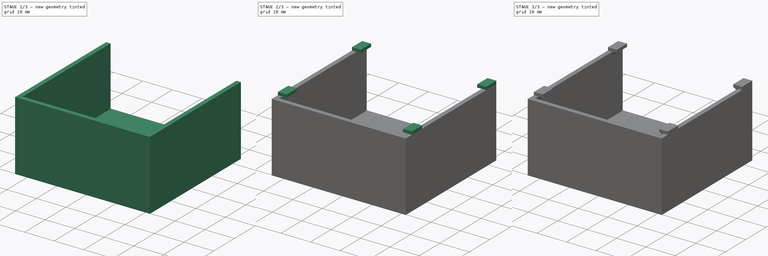
[diagram: build sequence overview — one tinted view per stage of 3, left to right]
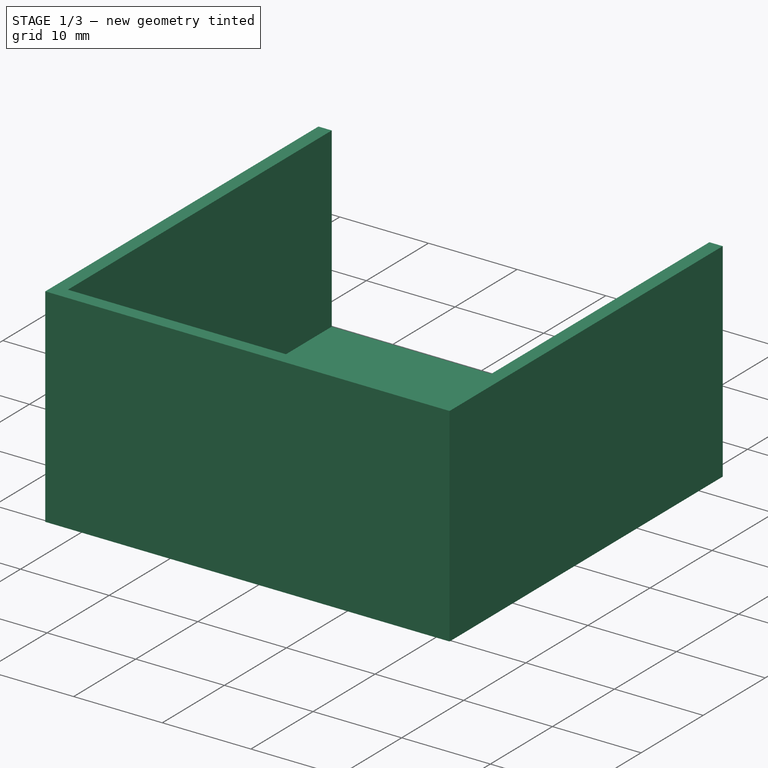
[diagram: stage 1 of 3 — iso view after this stage's code; geometry added in this stage tinted green]
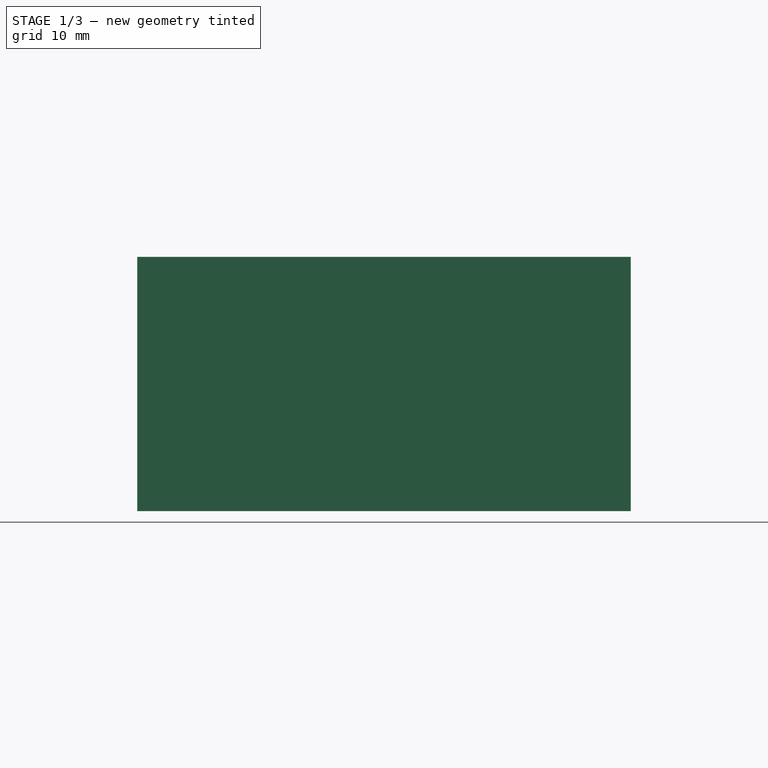
[diagram: stage 1 of 3 — front view after this stage's code; geometry added in this stage tinted green]
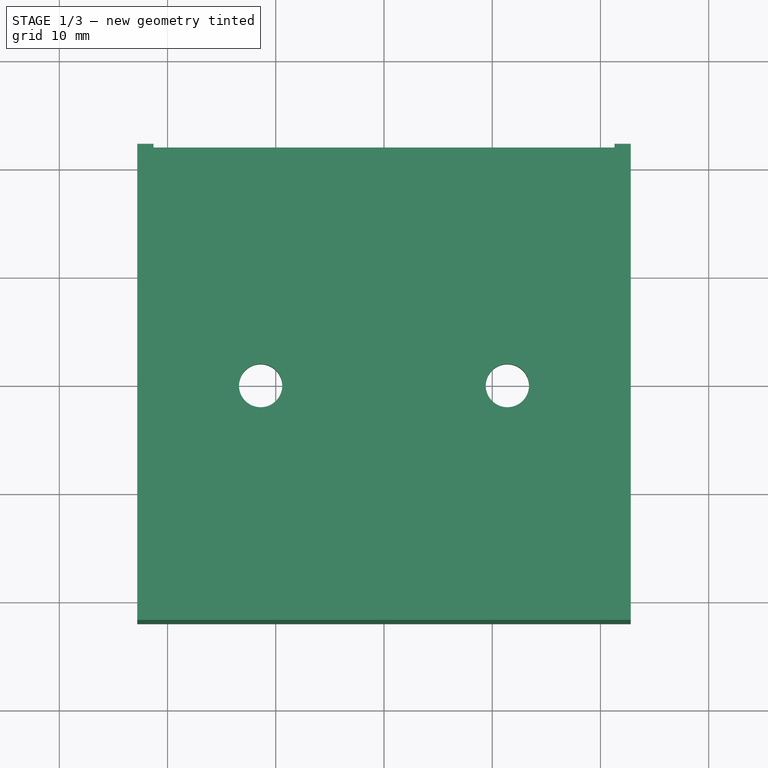
[diagram: stage 1 of 3 — top view after this stage's code; geometry added in this stage tinted green]
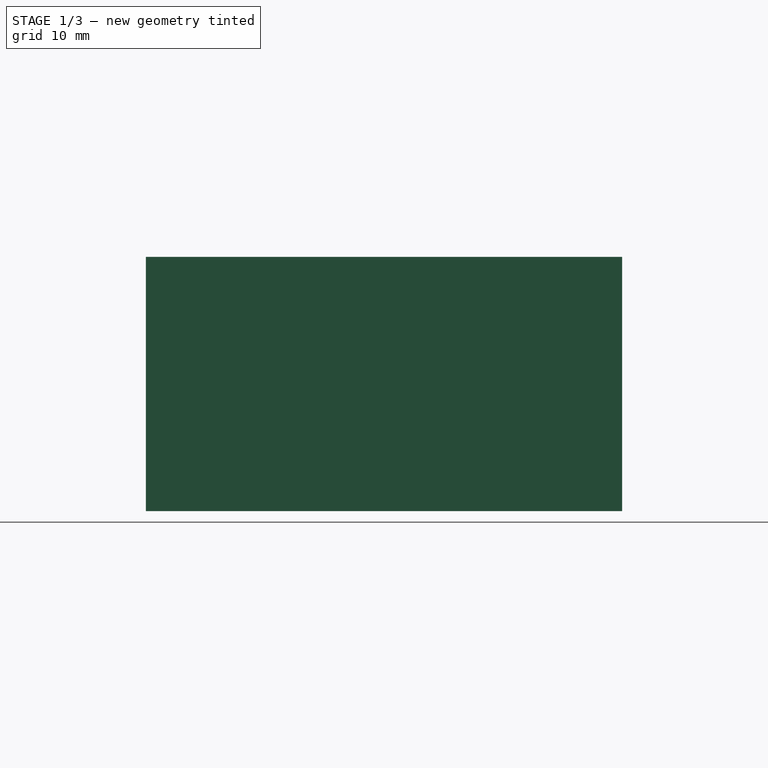
[diagram: stage 1 of 3 — right view after this stage's code; geometry added in this stage tinted green]
FCSTD DOCUMENT  (FreeCAD 0.20R29603 (Git))
Label: sonoff_zbmini_mount_v1
License: All rights reserved
LicenseURL: http://en.wikipedia.org/wiki/All_rights_reserved
objects: Sketcher::SketchObject×3, PartDesign::Pad×3, PartDesign::Chamfer×2, PartDesign::Body×1
note: 14 computed .brp shape members not serialized (recipe doc carries the construction recipe); baked Part::Feature solids carry a one-line shape summary decoded from their .brp

FEATURE [Sketcher::SketchObject] Sketch  label="baseplate"
  FullyConstrained = true
  sketch-geometry (6):
    g0: LineSegment StartX=-22.8 StartY=22 StartZ=0 EndX=22.8 EndY=22 EndZ=0
    g1: LineSegment StartX=22.8 StartY=22 StartZ=0 EndX=22.8 EndY=-22 EndZ=0
    g2: LineSegment StartX=22.8 StartY=-22 StartZ=0 EndX=-22.8 EndY=-22 EndZ=0
    g3: LineSegment StartX=-22.8 StartY=-22 StartZ=0 EndX=-22.8 EndY=22 EndZ=0
    g4: Circle CenterX=-11.4 CenterY=0 CenterZ=0 NormalX=0 NormalY=0 NormalZ=1 AngleXU=0 Radius=2
    g5: Circle CenterX=11.4 CenterY=0 CenterZ=0 NormalX=0 NormalY=0 NormalZ=1 AngleXU=0 Radius=2
  constraints (15):
    c: Coincident(g0,g1)
    c: Coincident(g1,g2)
    c: Coincident(g2,g3)
    c: Coincident(g3,g0)
    c: Horizontal(g2)
    c: Vertical(g3)
    c: DistanceX(g0,g0) = 45.6
    c: DistanceY(g1,g1) = 44
    c: Symmetric(g0,g0,g-2)
    c: Symmetric(g1,g0,g-1)
    c: PointOnObject(g4,g-1)
    c: Diameter(g4) = 4
    c: Equal(g4,g5)
    c: Symmetric(g4,g5,g-2)
    c: DistanceX(g4,g-1) = 11.4
FEATURE [PartDesign::Pad] Pad  label="baseplate001"
  Direction = (0,0,1)
  Length = 3.5
  Length2 = 10
  Profile = -> Sketch
  ReferenceAxis = -> Sketch [N_Axis]
  Type = 0
FEATURE [Sketcher::SketchObject] Sketch001  label="walls_sketch"
  ExternalGeometry = -> [Pad]
  FullyConstrained = true
  MapMode = 5
  Placement = pos=(0,0,3.5) rot=(0,0,1;0rad)
  Support = -> [Pad]
  sketch-geometry (8):
    g0: LineSegment StartX=-22.8 StartY=22 StartZ=0 EndX=-22.8 EndY=-22 EndZ=0
    g1: LineSegment StartX=-22.8 StartY=-22 StartZ=0 EndX=22.8 EndY=-22 EndZ=0
    g2: LineSegment StartX=22.8 StartY=22 StartZ=0 EndX=22.8 EndY=-22 EndZ=0
    g3: LineSegment StartX=-22.8 StartY=22 StartZ=0 EndX=-21.3 EndY=22 EndZ=0
    g4: LineSegment StartX=22.8 StartY=22 StartZ=0 EndX=21.3 EndY=22 EndZ=0
    g5: LineSegment StartX=-21.3 StartY=22 StartZ=0 EndX=-21.3 EndY=-20.5 EndZ=0
    g6: LineSegment StartX=21.3 StartY=22 StartZ=0 EndX=21.3 EndY=-20.5 EndZ=0
    g7: LineSegment StartX=-21.3 StartY=-20.5 StartZ=0 EndX=21.3 EndY=-20.5 EndZ=0
  constraints (18):
    c: Coincident(g0,g-3)
    c: Coincident(g0,g-4)
    c: Coincident(g1,g0)
    c: Coincident(g1,g-5)
    c: Coincident(g2,g-5)
    c: Coincident(g2,g1)
    c: Coincident(g3,g0)
    c: Horizontal(g3)
    c: Coincident(g4,g2)
    c: Symmetric(g3,g4,g-2)
    c: DistanceX(g3,g3) = 1.5
    c: Coincident(g5,g3)
    c: Vertical(g5)
    c: Coincident(g6,g4)
    c: Symmetric(g5,g6,g-2)
    c: Coincident(g7,g5)
    c: Coincident(g7,g6)
    c: DistanceY(g0,g5) = 1.5
FEATURE [PartDesign::Pad] Pad001  label="walls"
  BaseFeature = -> Pad
  Direction = (0,0,1)
  Length = 20
  Length2 = 10
  Profile = -> Sketch001
  ReferenceAxis = -> Sketch001 [N_Axis]
  Type = 0
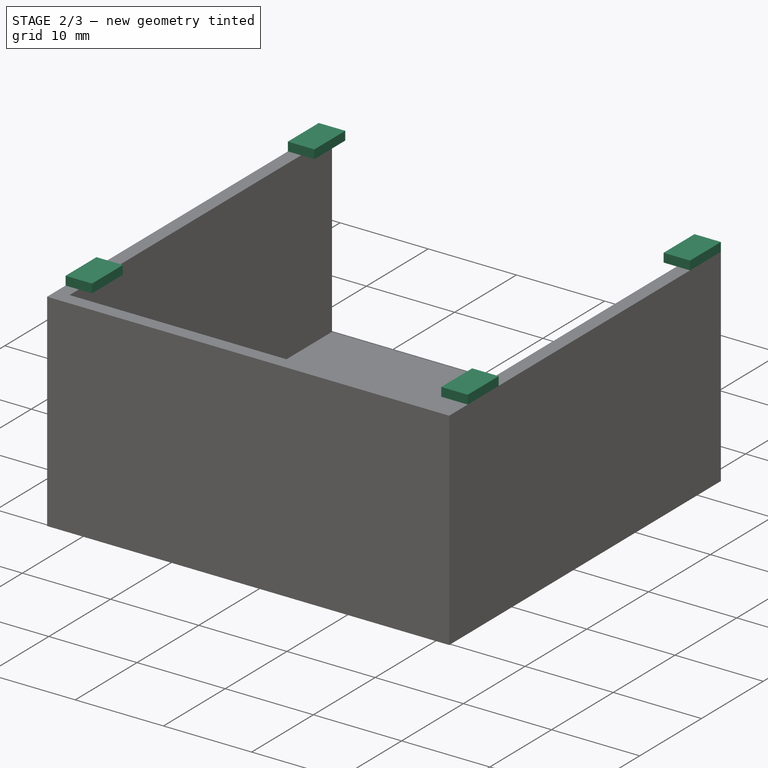
[diagram: stage 2 of 3 — iso view after this stage's code; geometry added in this stage tinted green]
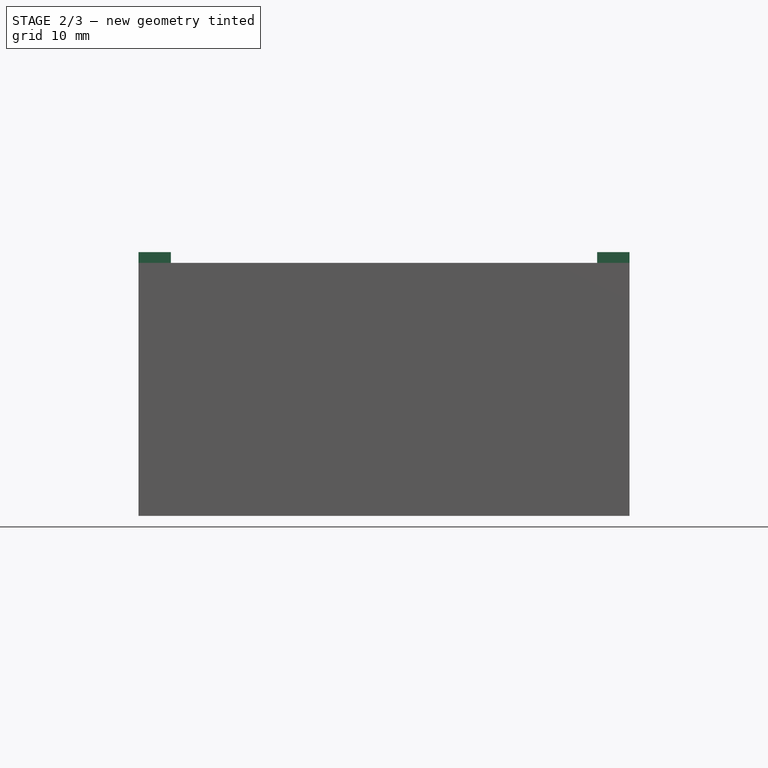
[diagram: stage 2 of 3 — front view after this stage's code; geometry added in this stage tinted green]
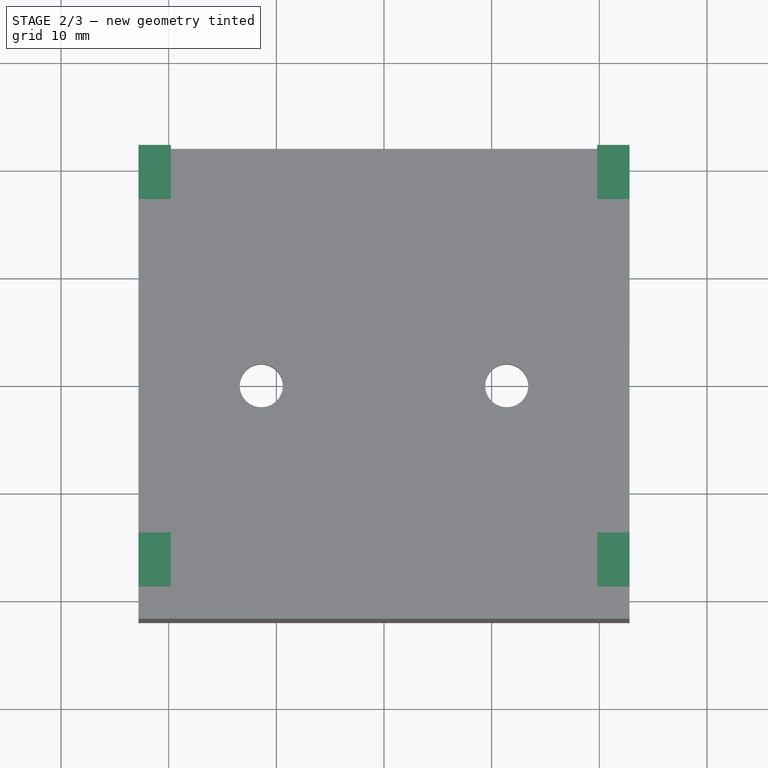
[diagram: stage 2 of 3 — top view after this stage's code; geometry added in this stage tinted green]
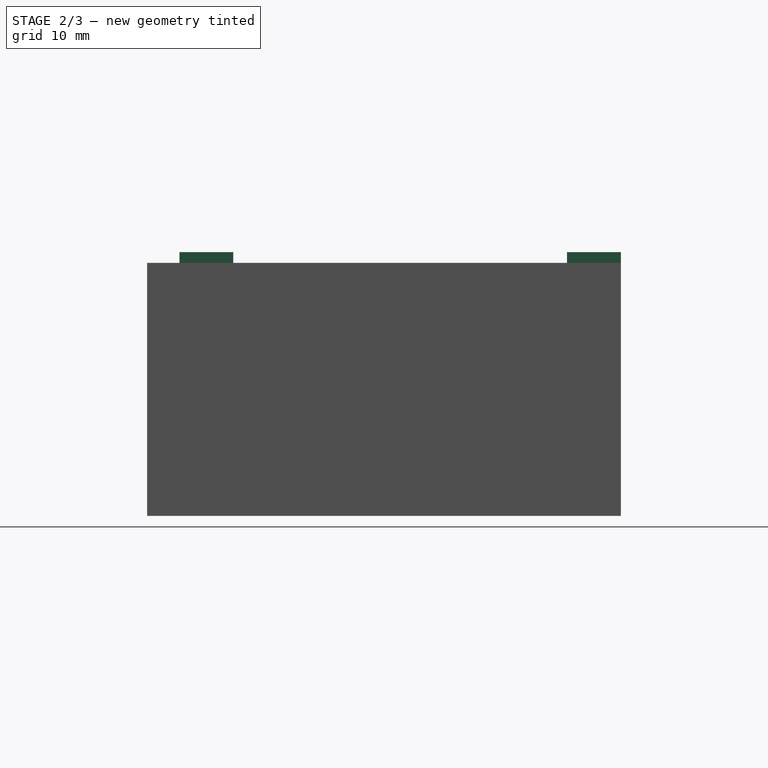
[diagram: stage 2 of 3 — right view after this stage's code; geometry added in this stage tinted green]
FEATURE [Sketcher::SketchObject] Sketch002  label="retainer"
  ExternalGeometry = -> [Pad001]
  FullyConstrained = true
  MapMode = 5
  Placement = pos=(0,0,23.5) rot=(0,0,1;0rad)
  Support = -> [Pad001]
  sketch-geometry (16):
    g0: LineSegment StartX=-22.8 StartY=22 StartZ=0 EndX=-19.8 EndY=22 EndZ=0
    g1: LineSegment StartX=-19.8 StartY=22 StartZ=0 EndX=-19.8 EndY=17 EndZ=0
    g2: LineSegment StartX=-19.8 StartY=17 StartZ=0 EndX=-22.8 EndY=17 EndZ=0
    g3: LineSegment StartX=-22.8 StartY=17 StartZ=0 EndX=-22.8 EndY=22 EndZ=0
    g4: LineSegment StartX=22.8 StartY=22 StartZ=0 EndX=19.8 EndY=22 EndZ=0
    g5: LineSegment StartX=19.8 StartY=22 StartZ=0 EndX=19.8 EndY=17 EndZ=0
    g6: LineSegment StartX=19.8 StartY=17 StartZ=0 EndX=22.8 EndY=17 EndZ=0
    g7: LineSegment StartX=22.8 StartY=17 StartZ=0 EndX=22.8 EndY=22 EndZ=0
    g8: LineSegment StartX=-22.8 StartY=-19 StartZ=0 EndX=-19.8 EndY=-19 EndZ=0
    g9: LineSegment StartX=-19.8 StartY=-19 StartZ=0 EndX=-19.8 EndY=-14 EndZ=0
    g10: LineSegment StartX=-19.8 StartY=-14 StartZ=0 EndX=-22.8 EndY=-14 EndZ=0
    g11: LineSegment StartX=-22.8 StartY=-14 StartZ=0 EndX=-22.8 EndY=-19 EndZ=0
    g12: LineSegment StartX=22.8 StartY=-19 StartZ=0 EndX=19.8 EndY=-19 EndZ=0
    g13: LineSegment StartX=19.8 StartY=-19 StartZ=0 EndX=19.8 EndY=-14 EndZ=0
    g14: LineSegment StartX=19.8 StartY=-14 StartZ=0 EndX=22.8 EndY=-14 EndZ=0
    g15: LineSegment StartX=22.8 StartY=-14 StartZ=0 EndX=22.8 EndY=-19 EndZ=0
  constraints (43):
    c: Coincident(g0,g1)
    c: Coincident(g1,g2)
    c: Coincident(g2,g3)
    c: Coincident(g3,g0)
    c: Horizontal(g0)
    c: Horizontal(g2)
    c: Vertical(g1)
    c: Vertical(g3)
    c: Coincident(g0,g-3)
    c: Coincident(g4,g5)
    c: Coincident(g5,g6)
    c: Coincident(g6,g7)
    c: Coincident(g7,g4)
    c: Horizontal(g4)
    c: Horizontal(g6)
    c: Vertical(g5)
    c: Vertical(g7)
    c: Coincident(g4,g-4)
    c: Symmetric(g5,g1,g-2)
    c: DistanceX(g0,g0) = 3
    c: DistanceY(g3,g3) = 5
    c: Coincident(g8,g9)
    c: Coincident(g9,g10)
    c: Coincident(g10,g11)
    c: Coincident(g11,g8)
    c: Horizontal(g8)
    c: Horizontal(g10)
    c: Vertical(g9)
    c: Vertical(g11)
    c: PointOnObject(g8,g-3)
    c: Coincident(g12,g13)
    c: Coincident(g13,g14)
    c: Coincident(g14,g15)
    c: Coincident(g15,g12)
    c: Horizontal(g12)
    c: Horizontal(g14)
    c: Vertical(g13)
    c: Vertical(g15)
    c: DistanceY(g-4,g12) = 3
    c: Symmetric(g12,g8,g-2)
    c: Symmetric(g9,g13,g-2)
    c: Equal(g3,g11)
    c: Equal(g0,g10)
FEATURE [PartDesign::Pad] Pad002  label="retainer001"
  BaseFeature = -> Pad001
  Direction = (0,0,1)
  Length = 1
  Length2 = 10
  Profile = -> Sketch002
  ReferenceAxis = -> Sketch002 [N_Axis]
  Type = 0
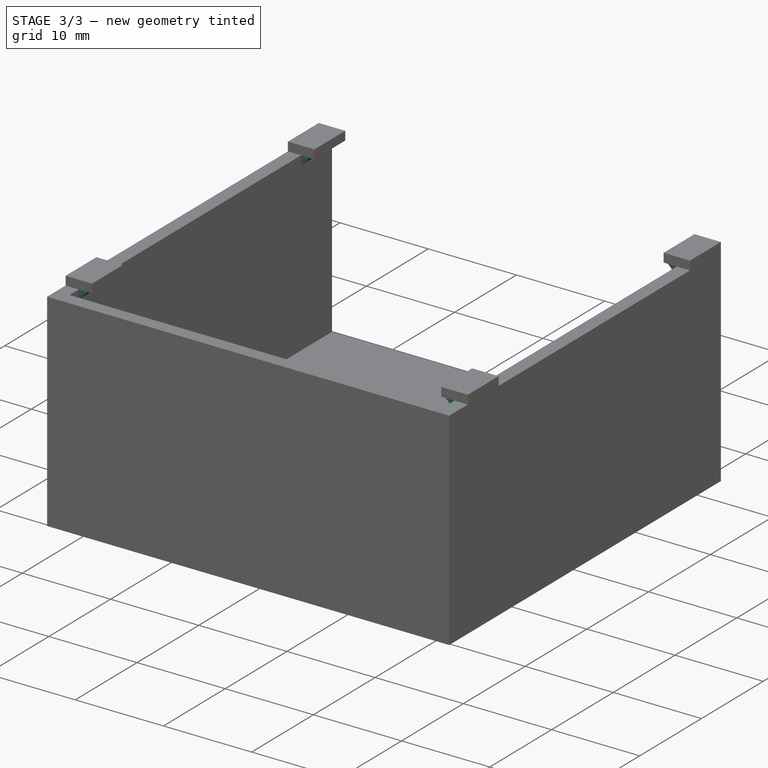
[diagram: stage 3 of 3 — iso view after this stage's code; geometry added in this stage tinted green]
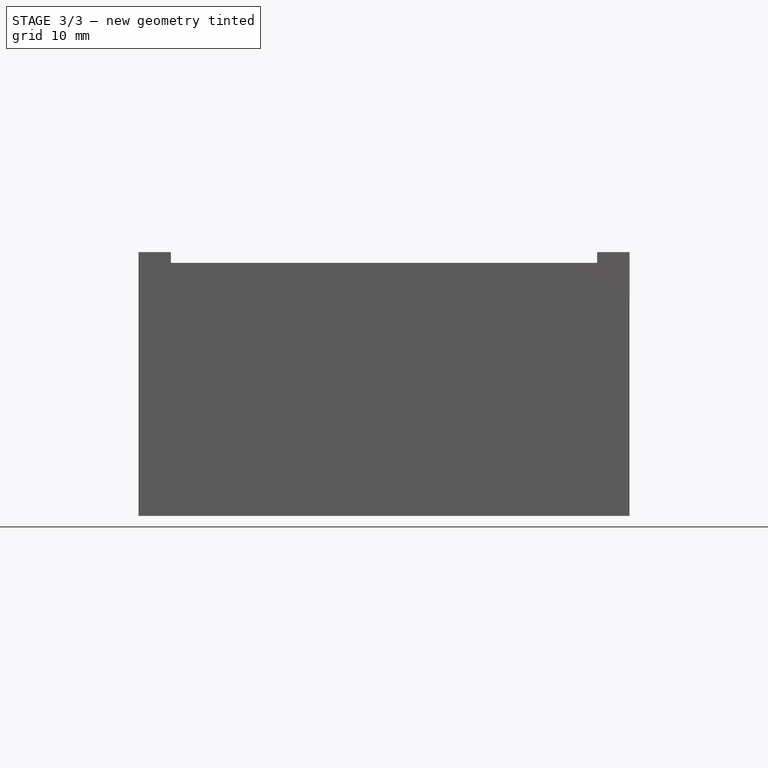
[diagram: stage 3 of 3 — front view after this stage's code; geometry added in this stage tinted green]
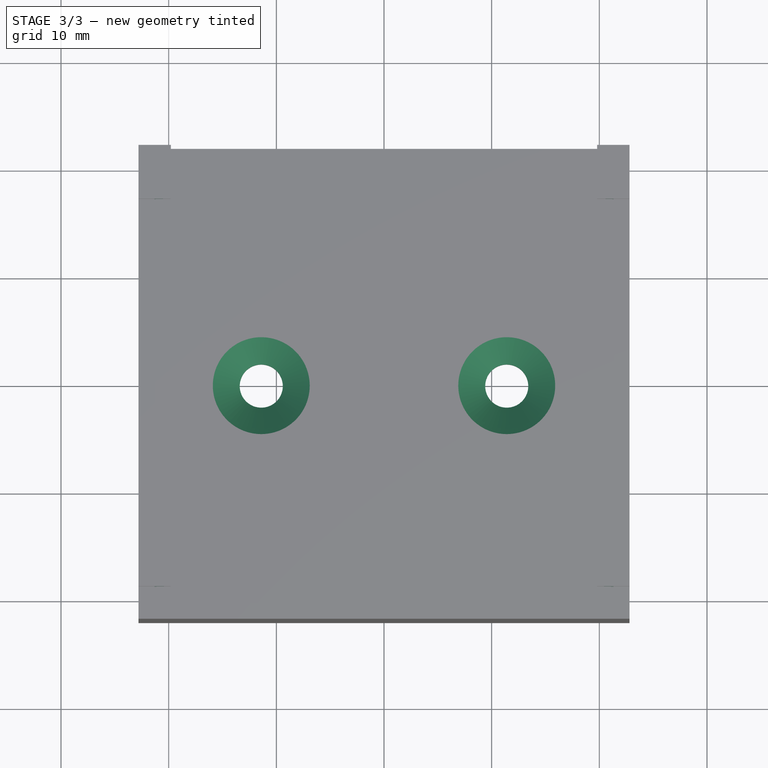
[diagram: stage 3 of 3 — top view after this stage's code; geometry added in this stage tinted green]
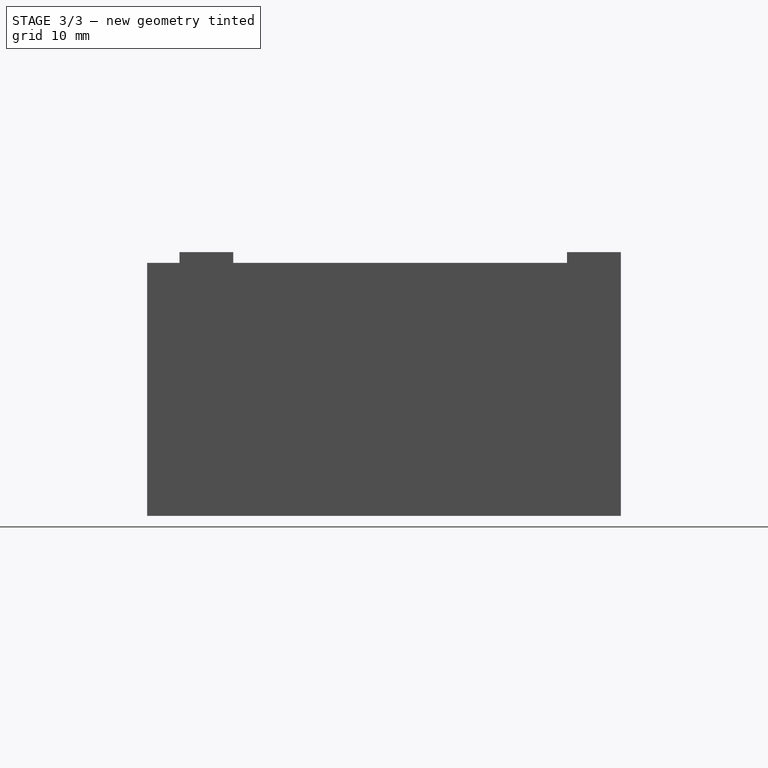
[diagram: stage 3 of 3 — right view after this stage's code; geometry added in this stage tinted green]
FEATURE [PartDesign::Chamfer] Chamfer  label="Retainer Chamfer"
  Angle = 45
  Base = -> Pad002 [Edge43,Edge41,Edge52,Edge50]
  BaseFeature = -> Pad002
  ChamferType = 0
  FlipDirection = false
  Size = 1
  Size2 = 1
  SupportTransform = false
  UseAllEdges = false
FEATURE [PartDesign::Chamfer] Chamfer001  label="Schrauben Chamfer"
  Angle = 45
  Base = -> Chamfer [Edge36,Edge35]
  BaseFeature = -> Chamfer
  ChamferType = 2
  FlipDirection = false
  Size = 2.5
  Size2 = 1
  SupportTransform = false
  UseAllEdges = false
FEATURE [PartDesign::Body] Body
  Group = -> [Sketch,Pad,Sketch001,Pad001,Sketch002,Pad002,Chamfer,Chamfer001]
  Origin = -> Origin
  Tip = -> Chamfer001
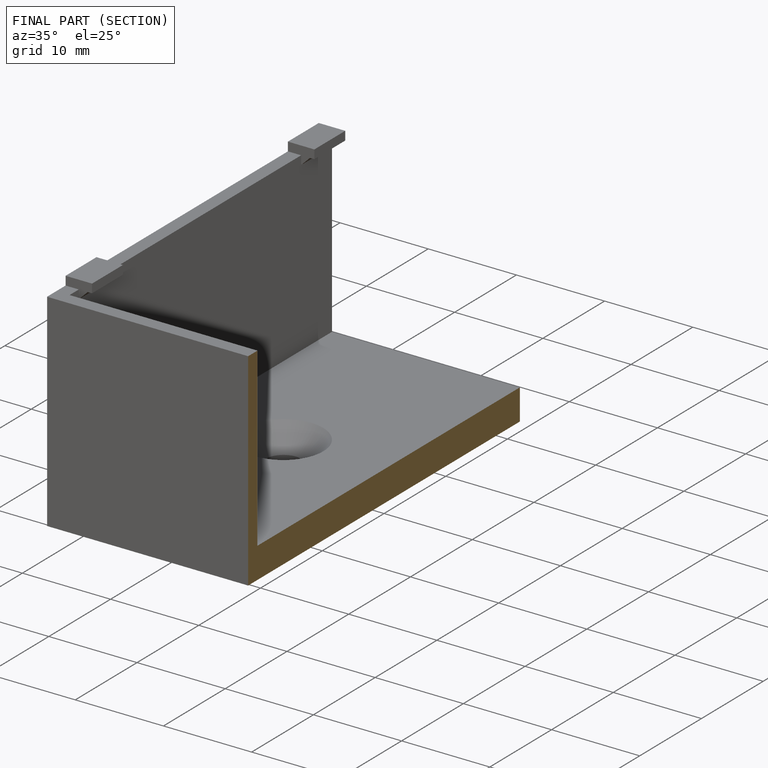
[diagram: finished part — half-section view (interior)]
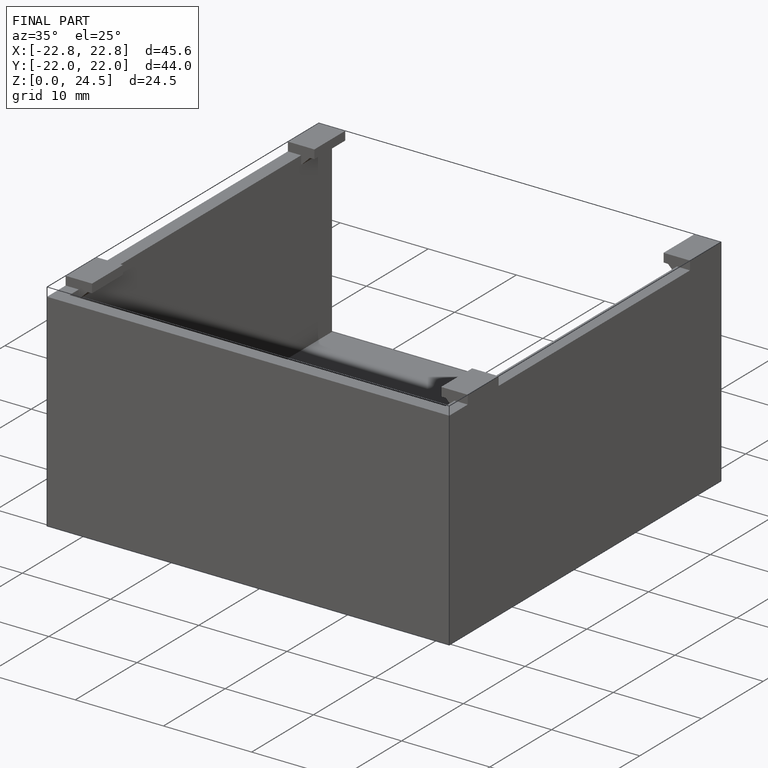
[diagram: finished part — iso view with bounding-box wireframe]
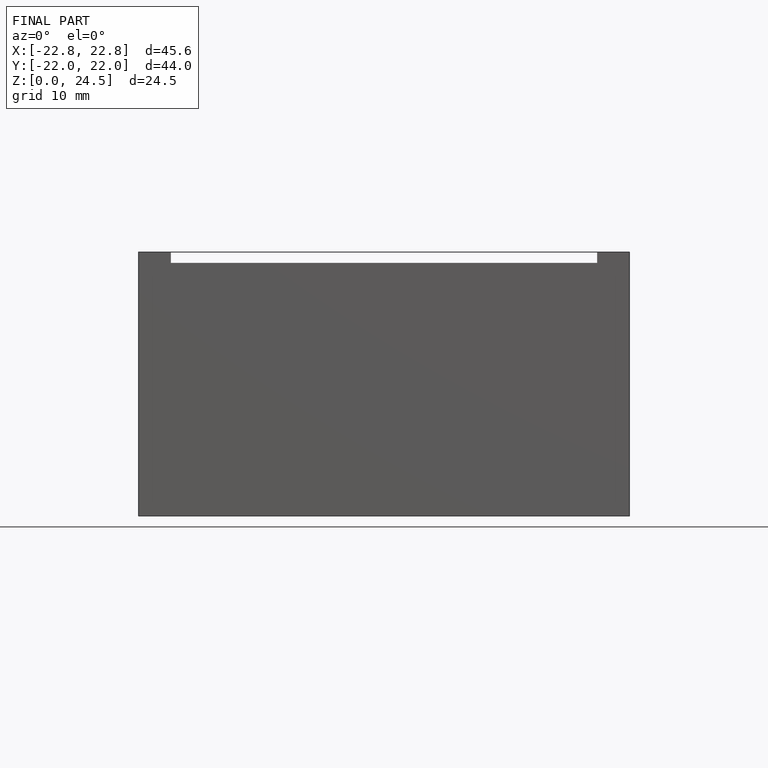
[diagram: finished part — front view with bounding-box wireframe]
